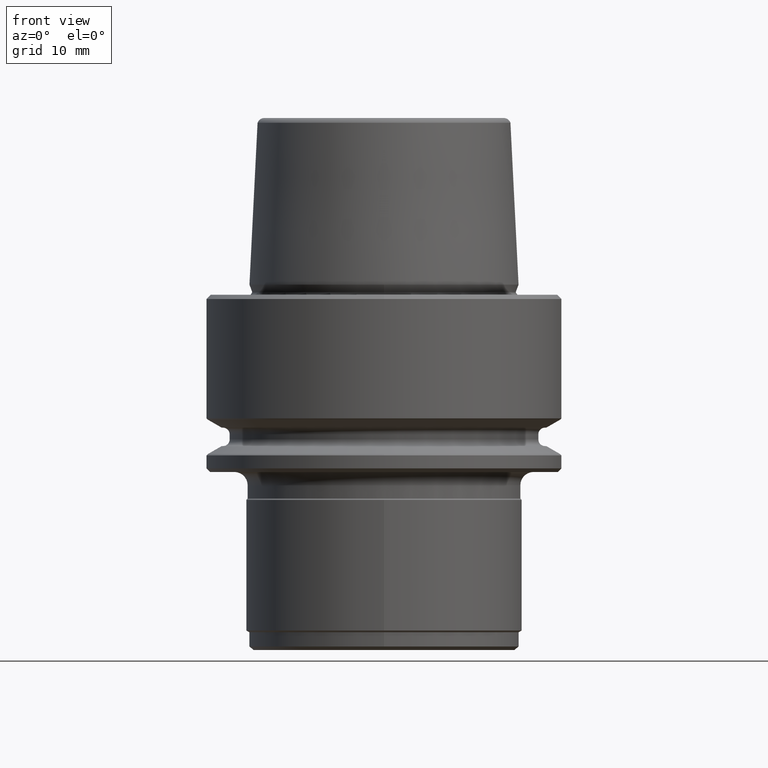
[diagram: clean part render]
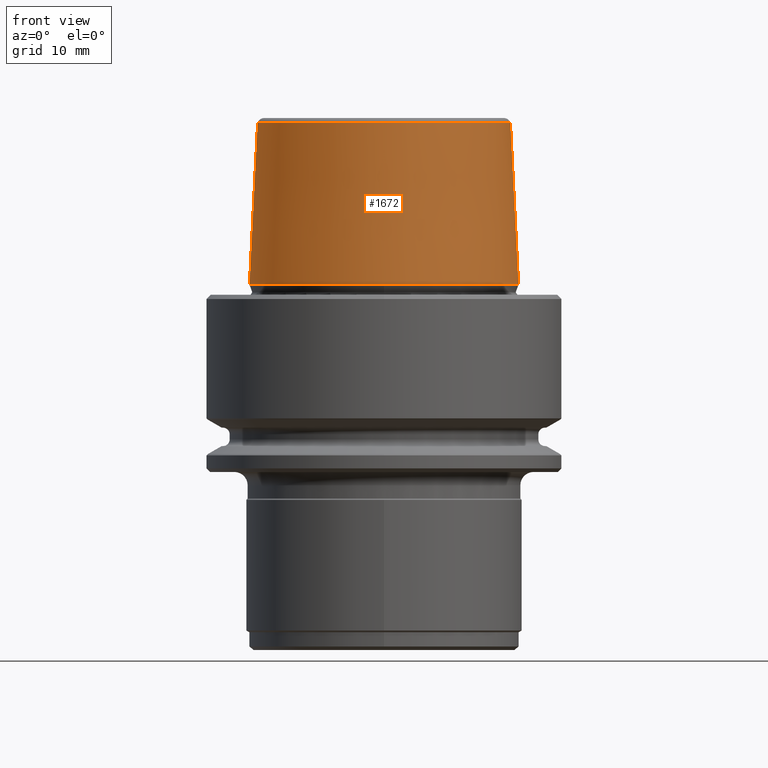
[diagram: same view with one face highlighted and labeled with its STEP entity id]
A machine part, front view. The second image highlights one B-rep face of the part: STEP entity #1672.
In plain terms, the highlighted conical surface has half-angle 2.868 deg.
Its self-contained STEP definition (entity closure, byte-faithful):
#836=VERTEX_POINT('NONE',#2240);
#862=VERTEX_POINT('NONE',#2268);
#922=EDGE_CURVE('NONE',#938,#1162,#2335,.T.);
#938=VERTEX_POINT('NONE',#2354);
#1114=VERTEX_POINT('NONE',#2558);
#1162=VERTEX_POINT('NONE',#2614);
#1324=EDGE_CURVE('NONE',#862,#1162,#2797,.T.);
#1672=ADVANCED_FACE('NONE',(#3177),#3178,.T.);
#1914=EDGE_CURVE('NONE',#836,#862,#3449,.T.);
#1984=EDGE_CURVE('NONE',#1114,#836,#3525,.T.);
#2004=EDGE_CURVE('NONE',#938,#1114,#3545,.T.);
#2240=CARTESIAN_POINT('',(15.1469430147065,0.0,1.13687742645895));
#2268=CARTESIAN_POINT('',(-1.85496552798276E-015,-15.1469430147065,1.13687742645895));
#2335=LINE('',#3988,#3989);
#2354=CARTESIAN_POINT('',(-14.2341860317643,-1.74318503622681E-015,19.3555068061809));
#2558=CARTESIAN_POINT('',(14.2341860317643,0.0,19.3555068061809));
#2614=CARTESIAN_POINT('',(-15.1469430147065,-1.85496552798276E-015,1.13687742645895));
#2797=CIRCLE('',#4698,15.1469430147065);
#3177=FACE_OUTER_BOUND('',#5335,.T.);
#3178=CONICAL_SURFACE('',#5336,13.1998927855711,0.050058345746598);
#3449=CIRCLE('',#5686,15.1469430147065);
#3525=LINE('',#5810,#5811);
#3545=CIRCLE('',#5848,14.2341860317545);
#3988=CARTESIAN_POINT('',(-13.1998927855711,-1.61652064489379E-015,40.0));
#3989=VECTOR('',#6219,1000.0);
#4698=AXIS2_PLACEMENT_3D('',#6895,#6896,#6897);
#5335=EDGE_LOOP('',(#7328,#7329,#7330,#7331,#7332));
#5336=AXIS2_PLACEMENT_3D('',#7333,#7334,#7335);
#5686=AXIS2_PLACEMENT_3D('',#7695,#7696,#7697);
#5810=CARTESIAN_POINT('',(13.1998927855711,0.0,40.0));
#5811=VECTOR('',#7789,1000.0);
#5848=AXIS2_PLACEMENT_3D('',#7800,#7801,#7802);
#6219=DIRECTION('',(-0.0500374420151828,-6.12781932014149E-018,-0.998747342623037));
#6895=CARTESIAN_POINT('',(0.0,3.89716504658841E-016,1.13687742645895));
#6896=DIRECTION('',(0.0,0.0,-1.0));
#6897=DIRECTION('',(1.0,0.0,0.0));
#7328=ORIENTED_EDGE('',*,*,#2004,.F.);
#7329=ORIENTED_EDGE('',*,*,#922,.T.);
#7330=ORIENTED_EDGE('',*,*,#1324,.F.);
#7331=ORIENTED_EDGE('',*,*,#1914,.F.);
#7332=ORIENTED_EDGE('',*,*,#1984,.F.);
#7333=CARTESIAN_POINT('',(0.0,0.0,40.0));
#7334=DIRECTION('',(-0.0,0.0,-1.0));
#7335=DIRECTION('',(1.0,0.0,0.0));
#7695=CARTESIAN_POINT('',(0.0,3.89716504658841E-016,1.13687742645895));
#7696=DIRECTION('',(0.0,0.0,-1.0));
#7697=DIRECTION('',(1.0,0.0,0.0));
#7789=DIRECTION('',(0.0500374420151828,0.0,-0.998747342623037));
#7800=CARTESIAN_POINT('',(0.0,0.0,19.3555068061809));
#7801=DIRECTION('',(0.0,-0.0,1.0));
#7802=DIRECTION('',(1.0,0.0,0.0));